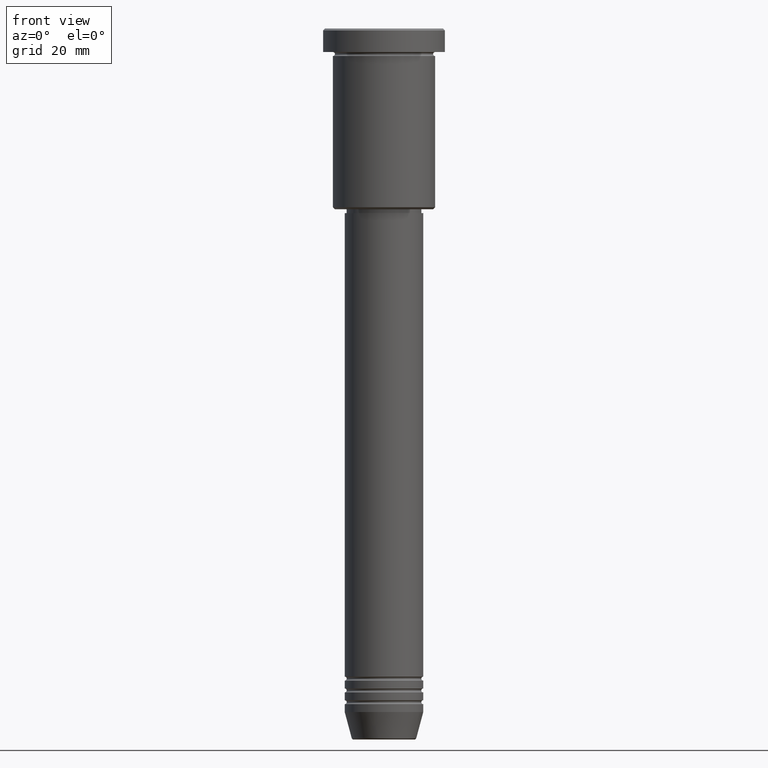
[diagram: clean part render]
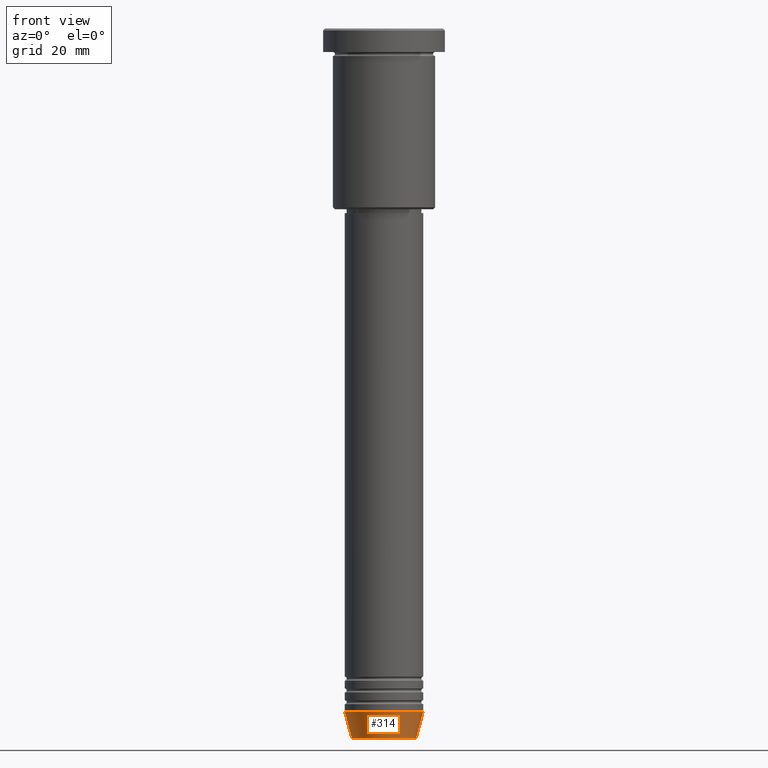
[diagram: same view with one face highlighted and labeled with its STEP entity id]
A machine part, front view. The second image highlights one B-rep face of the part: STEP entity #314.
In plain terms, the highlighted conical surface has half-angle 15 deg.
Its self-contained STEP definition (entity closure, byte-faithful):
#21 = DIRECTION ( 'NONE',  ( -0.2588190451025213501, 3.169619151431772337E-17, 0.9659258262890680902 ) ) ;
#35 = VECTOR ( 'NONE', #21, 1000.000000000000000 ) ;
#72 = EDGE_CURVE ( 'NONE', #396, #353, #553, .T. ) ;
#95 = ORIENTED_EDGE ( 'NONE', *, *, #143, .T. ) ;
#120 = AXIS2_PLACEMENT_3D ( 'NONE', #273, #643, #461 ) ;
#142 = VERTEX_POINT ( 'NONE', #1064 ) ;
#143 = EDGE_CURVE ( 'NONE', #396, #142, #745, .T. ) ;
#163 = CARTESIAN_POINT ( 'NONE',  ( 0.000000000000000000, 0.000000000000000000, -180.6294095225512422 ) ) ;
#210 = ORIENTED_EDGE ( 'NONE', *, *, #72, .F. ) ;
#273 = CARTESIAN_POINT ( 'NONE',  ( 0.000000000000000000, 0.000000000000000000, -174.0000000000000284 ) ) ;
#282 = CARTESIAN_POINT ( 'NONE',  ( 10.00000000000000000, 0.000000000000000000, -174.0000000000000284 ) ) ;
#291 = ORIENTED_EDGE ( 'NONE', *, *, #704, .T. ) ;
#314 = ADVANCED_FACE ( 'NONE', ( #888 ), #795, .T. ) ;
#317 = DIRECTION ( 'NONE',  ( -0.000000000000000000, -0.000000000000000000, 1.000000000000000000 ) ) ;
#331 = EDGE_CURVE ( 'NONE', #353, #460, #1132, .T. ) ;
#353 = VERTEX_POINT ( 'NONE', #477 ) ;
#380 = CARTESIAN_POINT ( 'NONE',  ( -10.00000000000000000, 1.224646799147353256E-15, -174.0000000000000284 ) ) ;
#396 = VERTEX_POINT ( 'NONE', #825 ) ;
#460 = VERTEX_POINT ( 'NONE', #282 ) ;
#461 = DIRECTION ( 'NONE',  ( 1.000000000000000000, 0.000000000000000000, 0.000000000000000000 ) ) ;
#477 = CARTESIAN_POINT ( 'NONE',  ( -10.00000000000000000, 1.224646799147353256E-15, -174.0000000000000284 ) ) ;
#479 = ORIENTED_EDGE ( 'NONE', *, *, #331, .F. ) ;
#491 = AXIS2_PLACEMENT_3D ( 'NONE', #1127, #317, #681 ) ;
#553 = LINE ( 'NONE', #380, #35 ) ;
#602 = DIRECTION ( 'NONE',  ( -0.000000000000000000, -0.000000000000000000, 1.000000000000000000 ) ) ;
#643 = DIRECTION ( 'NONE',  ( -0.000000000000000000, -0.000000000000000000, 1.000000000000000000 ) ) ;
#681 = DIRECTION ( 'NONE',  ( 1.000000000000000000, 0.000000000000000000, 0.000000000000000000 ) ) ;
#704 = EDGE_CURVE ( 'NONE', #142, #460, #1147, .T. ) ;
#711 = CARTESIAN_POINT ( 'NONE',  ( 10.00000000000000000, 0.000000000000000000, -174.0000000000000284 ) ) ;
#721 = AXIS2_PLACEMENT_3D ( 'NONE', #163, #602, #1051 ) ;
#745 = CIRCLE ( 'NONE', #721, 8.223655072137198374 ) ;
#795 = CONICAL_SURFACE ( 'NONE', #491, 10.00000000000000000, 0.2617993877991500740 ) ;
#825 = CARTESIAN_POINT ( 'NONE',  ( -8.223655072137198374, 1.115877042642912448E-15, -180.6294095225512422 ) ) ;
#888 = FACE_OUTER_BOUND ( 'NONE', #1046, .T. ) ;
#995 = DIRECTION ( 'NONE',  ( 0.2588190451025213501, 0.000000000000000000, 0.9659258262890680902 ) ) ;
#1043 = VECTOR ( 'NONE', #995, 1000.000000000000000 ) ;
#1046 = EDGE_LOOP ( 'NONE', ( #210, #95, #291, #479 ) ) ;
#1051 = DIRECTION ( 'NONE',  ( 1.000000000000000000, 0.000000000000000000, 0.000000000000000000 ) ) ;
#1064 = CARTESIAN_POINT ( 'NONE',  ( 8.223655072137198374, 0.000000000000000000, -180.6294095225512422 ) ) ;
#1127 = CARTESIAN_POINT ( 'NONE',  ( 0.000000000000000000, 0.000000000000000000, -174.0000000000000284 ) ) ;
#1132 = CIRCLE ( 'NONE', #120, 10.00000000000000000 ) ;
#1147 = LINE ( 'NONE', #711, #1043 ) ;